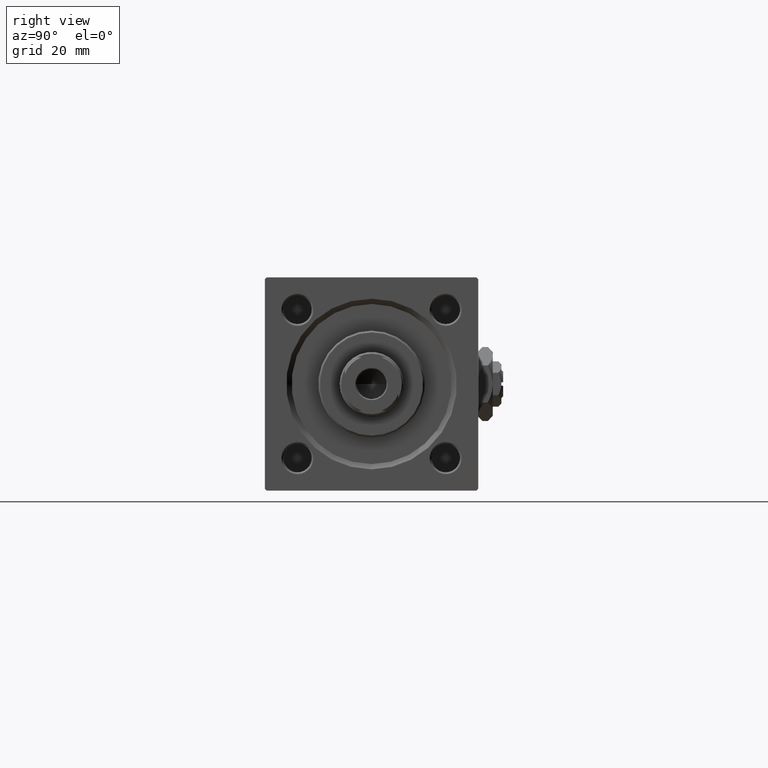
[diagram: clean part render]
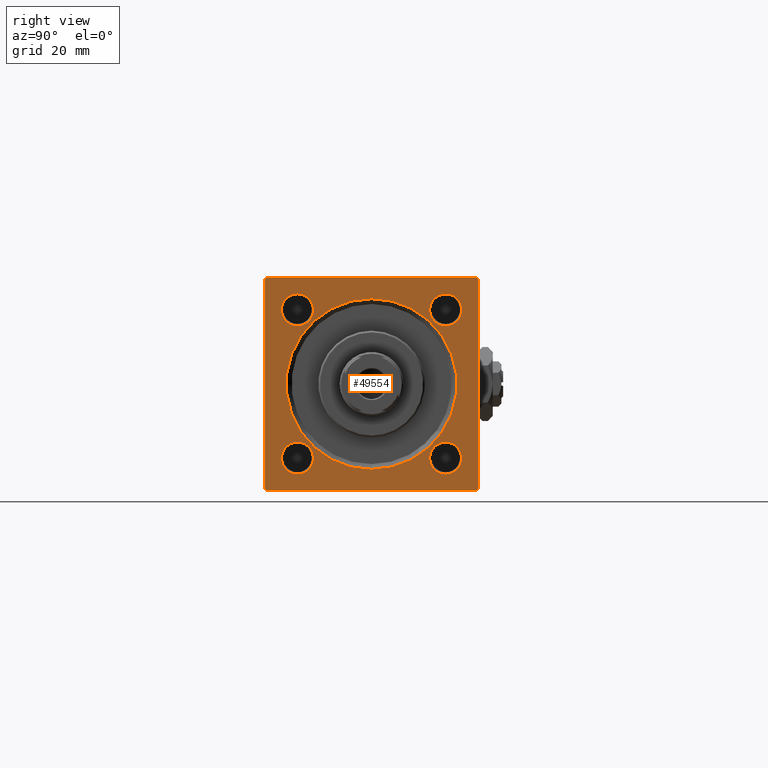
[diagram: same view with one face highlighted and labeled with its STEP entity id]
A machine part, right view. The second image highlights one B-rep face of the part: STEP entity #49554.
In plain terms, the highlighted planar face has unit normal (-1, 0, 0).
Its self-contained STEP definition (entity closure, byte-faithful):
#145 = CIRCLE ( 'NONE', #22981, 4.500000000000017764 ) ;
#213 = CARTESIAN_POINT ( 'NONE',  ( 148.0000000000000000, 30.00000000000000000, 29.50000000000000000 ) ) ;
#396 = ORIENTED_EDGE ( 'NONE', *, *, #10857, .T. ) ;
#662 = AXIS2_PLACEMENT_3D ( 'NONE', #15594, #3428, #19811 ) ;
#929 = ORIENTED_EDGE ( 'NONE', *, *, #51135, .T. ) ;
#1285 = AXIS2_PLACEMENT_3D ( 'NONE', #32407, #27679, #4395 ) ;
#1403 = VECTOR ( 'NONE', #11722, 1000.000000000000114 ) ;
#1463 = DIRECTION ( 'NONE',  ( 0.000000000000000000, -0.7071067811865474617, 0.7071067811865474617 ) ) ;
#1623 = DIRECTION ( 'NONE',  ( 0.000000000000000000, 0.000000000000000000, 1.000000000000000000 ) ) ;
#2126 = CIRCLE ( 'NONE', #1285, 4.500000000000017764 ) ;
#2763 = ORIENTED_EDGE ( 'NONE', *, *, #15296, .T. ) ;
#3004 = LINE ( 'NONE', #39468, #1403 ) ;
#3039 = CARTESIAN_POINT ( 'NONE',  ( 148.0000000000000000, -20.85000000000000142, -25.35000000000001918 ) ) ;
#3245 = FACE_OUTER_BOUND ( 'NONE', #5820, .T. ) ;
#3428 = DIRECTION ( 'NONE',  ( -1.000000000000000000, 0.000000000000000000, -0.000000000000000000 ) ) ;
#3753 = CARTESIAN_POINT ( 'NONE',  ( 148.0000000000000000, 0.000000000000000000, 0.000000000000000000 ) ) ;
#3816 = ORIENTED_EDGE ( 'NONE', *, *, #27775, .T. ) ;
#4395 = DIRECTION ( 'NONE',  ( 0.000000000000000000, 0.000000000000000000, 1.000000000000000000 ) ) ;
#5437 = CARTESIAN_POINT ( 'NONE',  ( 148.0000000000000000, 29.50000000000000000, 30.00000000000000000 ) ) ;
#5590 = AXIS2_PLACEMENT_3D ( 'NONE', #5600, #34133, #1623 ) ;
#5600 = CARTESIAN_POINT ( 'NONE',  ( 148.0000000000000000, 20.84999999999999787, 20.85000000000000142 ) ) ;
#5637 = VECTOR ( 'NONE', #25885, 1000.000000000000000 ) ;
#5820 = EDGE_LOOP ( 'NONE', ( #396, #35622, #26323, #3816, #51748, #929, #29946, #13923 ) ) ;
#6004 = CARTESIAN_POINT ( 'NONE',  ( 148.0000000000000000, -29.50000000000000000, 29.99999999999999289 ) ) ;
#6414 = CARTESIAN_POINT ( 'NONE',  ( 148.0000000000000000, 20.84999999999999787, -20.85000000000000142 ) ) ;
#6750 = CARTESIAN_POINT ( 'NONE',  ( 148.0000000000000000, 0.000000000000000000, 0.000000000000000000 ) ) ;
#7537 = CARTESIAN_POINT ( 'NONE',  ( 148.0000000000000000, 0.000000000000000000, -24.00000000000003908 ) ) ;
#7757 = DIRECTION ( 'NONE',  ( 0.000000000000000000, 0.000000000000000000, 1.000000000000000000 ) ) ;
#7831 = CARTESIAN_POINT ( 'NONE',  ( 148.0000000000000000, 29.50000000000000000, -29.99999999999999289 ) ) ;
#8252 = EDGE_CURVE ( 'NONE', #11124, #14353, #27624, .T. ) ;
#9292 = EDGE_CURVE ( 'NONE', #14353, #11124, #45372, .T. ) ;
#9766 = CARTESIAN_POINT ( 'NONE',  ( 148.0000000000000000, -30.00000000000000000, 29.99999999999999289 ) ) ;
#10134 = CARTESIAN_POINT ( 'NONE',  ( 148.0000000000000000, 30.00000000000000000, -29.99999999999999289 ) ) ;
#10738 = AXIS2_PLACEMENT_3D ( 'NONE', #16005, #36347, #16267 ) ;
#10847 = DIRECTION ( 'NONE',  ( 0.000000000000000000, -1.000000000000000000, -1.156482317317871478E-16 ) ) ;
#10857 = EDGE_CURVE ( 'NONE', #47441, #32833, #45959, .T. ) ;
#11124 = VERTEX_POINT ( 'NONE', #7537 ) ;
#11177 = DIRECTION ( 'NONE',  ( -0.000000000000000000, 0.000000000000000000, 1.000000000000000000 ) ) ;
#11465 = AXIS2_PLACEMENT_3D ( 'NONE', #6750, #46142, #30032 ) ;
#11722 = DIRECTION ( 'NONE',  ( 0.000000000000000000, 0.7071067811865474617, -0.7071067811865474617 ) ) ;
#11907 = ORIENTED_EDGE ( 'NONE', *, *, #9292, .T. ) ;
#12699 = CIRCLE ( 'NONE', #27089, 4.500000000000017764 ) ;
#13351 = CARTESIAN_POINT ( 'NONE',  ( 148.0000000000000000, 20.84999999999999787, -20.85000000000000142 ) ) ;
#13923 = ORIENTED_EDGE ( 'NONE', *, *, #38705, .T. ) ;
#14029 = AXIS2_PLACEMENT_3D ( 'NONE', #45568, #21526, #37628 ) ;
#14295 = EDGE_LOOP ( 'NONE', ( #27257, #11907 ) ) ;
#14353 = VERTEX_POINT ( 'NONE', #41444 ) ;
#15272 = VECTOR ( 'NONE', #10847, 1000.000000000000000 ) ;
#15296 = EDGE_CURVE ( 'NONE', #17389, #32064, #12699, .T. ) ;
#15352 = ORIENTED_EDGE ( 'NONE', *, *, #34759, .T. ) ;
#15594 = CARTESIAN_POINT ( 'NONE',  ( 148.0000000000000000, -20.84999999999999432, 20.85000000000000142 ) ) ;
#15664 = PLANE ( 'NONE',  #45473 ) ;
#15764 = DIRECTION ( 'NONE',  ( -0.000000000000000000, -0.7071067811865474617, -0.7071067811865474617 ) ) ;
#16005 = CARTESIAN_POINT ( 'NONE',  ( 148.0000000000000000, 0.000000000000000000, 0.000000000000000000 ) ) ;
#16047 = CARTESIAN_POINT ( 'NONE',  ( 148.0000000000000000, 30.00000000000000000, -29.49999999999997868 ) ) ;
#16267 = DIRECTION ( 'NONE',  ( 0.000000000000000000, 0.000000000000000000, 1.000000000000000000 ) ) ;
#17163 = EDGE_CURVE ( 'NONE', #30063, #23548, #43316, .T. ) ;
#17379 = VERTEX_POINT ( 'NONE', #30545 ) ;
#17389 = VERTEX_POINT ( 'NONE', #46912 ) ;
#17391 = VERTEX_POINT ( 'NONE', #34504 ) ;
#17822 = CARTESIAN_POINT ( 'NONE',  ( 148.0000000000000000, 20.84999999999999787, 25.35000000000001918 ) ) ;
#18262 = CARTESIAN_POINT ( 'NONE',  ( 148.0000000000000000, -20.84999999999999432, 16.34999999999998366 ) ) ;
#19811 = DIRECTION ( 'NONE',  ( 0.000000000000000000, 0.000000000000000000, 1.000000000000000000 ) ) ;
#20237 = DIRECTION ( 'NONE',  ( -0.000000000000000000, 0.7071067811865474617, 0.7071067811865474617 ) ) ;
#20511 = LINE ( 'NONE', #20780, #32678 ) ;
#20780 = CARTESIAN_POINT ( 'NONE',  ( 148.0000000000000000, -30.00000000000000000, 29.49999999999999289 ) ) ;
#21526 = DIRECTION ( 'NONE',  ( -1.000000000000000000, 0.000000000000000000, -0.000000000000000000 ) ) ;
#22446 = CIRCLE ( 'NONE', #14029, 4.500000000000017764 ) ;
#22543 = EDGE_CURVE ( 'NONE', #27695, #17391, #145, .T. ) ;
#22981 = AXIS2_PLACEMENT_3D ( 'NONE', #13351, #24172, #24694 ) ;
#23091 = FACE_BOUND ( 'NONE', #33343, .T. ) ;
#23548 = VERTEX_POINT ( 'NONE', #6004 ) ;
#24111 = DIRECTION ( 'NONE',  ( -1.000000000000000000, 0.000000000000000000, -0.000000000000000000 ) ) ;
#24172 = DIRECTION ( 'NONE',  ( -1.000000000000000000, 0.000000000000000000, -0.000000000000000000 ) ) ;
#24186 = AXIS2_PLACEMENT_3D ( 'NONE', #35261, #43699, #7757 ) ;
#24694 = DIRECTION ( 'NONE',  ( 0.000000000000000000, 0.000000000000000000, 1.000000000000000000 ) ) ;
#25730 = LINE ( 'NONE', #10134, #48710 ) ;
#25885 = DIRECTION ( 'NONE',  ( 0.000000000000000000, 0.000000000000000000, -1.000000000000000000 ) ) ;
#25998 = DIRECTION ( 'NONE',  ( 0.000000000000000000, -1.000000000000000000, -1.156482317317871478E-16 ) ) ;
#26323 = ORIENTED_EDGE ( 'NONE', *, *, #38810, .F. ) ;
#26841 = ORIENTED_EDGE ( 'NONE', *, *, #37631, .T. ) ;
#27089 = AXIS2_PLACEMENT_3D ( 'NONE', #51887, #28117, #40258 ) ;
#27214 = CARTESIAN_POINT ( 'NONE',  ( 148.0000000000000000, 30.00000000000000000, 30.00000000000000000 ) ) ;
#27257 = ORIENTED_EDGE ( 'NONE', *, *, #8252, .T. ) ;
#27307 = ORIENTED_EDGE ( 'NONE', *, *, #34403, .T. ) ;
#27334 = VERTEX_POINT ( 'NONE', #18262 ) ;
#27624 = CIRCLE ( 'NONE', #10738, 24.00000000000003908 ) ;
#27679 = DIRECTION ( 'NONE',  ( -1.000000000000000000, 0.000000000000000000, -0.000000000000000000 ) ) ;
#27695 = VERTEX_POINT ( 'NONE', #38775 ) ;
#27775 = EDGE_CURVE ( 'NONE', #33625, #41157, #48000, .T. ) ;
#28117 = DIRECTION ( 'NONE',  ( -1.000000000000000000, 0.000000000000000000, -0.000000000000000000 ) ) ;
#28198 = VECTOR ( 'NONE', #20237, 1000.000000000000114 ) ;
#29184 = EDGE_CURVE ( 'NONE', #17391, #27695, #49329, .T. ) ;
#29723 = CARTESIAN_POINT ( 'NONE',  ( 148.0000000000000000, -29.50000000000000000, -30.00000000000000000 ) ) ;
#29946 = ORIENTED_EDGE ( 'NONE', *, *, #17163, .T. ) ;
#30032 = DIRECTION ( 'NONE',  ( 0.000000000000000000, 0.000000000000000000, 1.000000000000000000 ) ) ;
#30063 = VERTEX_POINT ( 'NONE', #30746 ) ;
#30178 = LINE ( 'NONE', #46549, #30891 ) ;
#30438 = DIRECTION ( 'NONE',  ( 0.000000000000000000, 0.000000000000000000, -1.000000000000000000 ) ) ;
#30545 = CARTESIAN_POINT ( 'NONE',  ( 148.0000000000000000, -20.84999999999999432, 25.35000000000001918 ) ) ;
#30746 = CARTESIAN_POINT ( 'NONE',  ( 148.0000000000000000, 29.50000000000000000, 30.00000000000000000 ) ) ;
#30891 = VECTOR ( 'NONE', #30438, 1000.000000000000000 ) ;
#31103 = ORIENTED_EDGE ( 'NONE', *, *, #48646, .T. ) ;
#31247 = DIRECTION ( 'NONE',  ( -1.000000000000000000, 0.000000000000000000, -0.000000000000000000 ) ) ;
#31995 = VERTEX_POINT ( 'NONE', #49336 ) ;
#32064 = VERTEX_POINT ( 'NONE', #3039 ) ;
#32381 = CARTESIAN_POINT ( 'NONE',  ( 148.0000000000000000, 30.00000000000000000, -29.49999999999999289 ) ) ;
#32407 = CARTESIAN_POINT ( 'NONE',  ( 148.0000000000000000, 20.84999999999999787, 20.85000000000000142 ) ) ;
#32678 = VECTOR ( 'NONE', #15764, 1000.000000000000114 ) ;
#32833 = VERTEX_POINT ( 'NONE', #48037 ) ;
#33215 = VERTEX_POINT ( 'NONE', #213 ) ;
#33343 = EDGE_LOOP ( 'NONE', ( #15352, #2763 ) ) ;
#33625 = VERTEX_POINT ( 'NONE', #7831 ) ;
#33882 = EDGE_LOOP ( 'NONE', ( #39400, #33917 ) ) ;
#33917 = ORIENTED_EDGE ( 'NONE', *, *, #29184, .T. ) ;
#34133 = DIRECTION ( 'NONE',  ( -1.000000000000000000, 0.000000000000000000, -0.000000000000000000 ) ) ;
#34403 = EDGE_CURVE ( 'NONE', #31995, #40770, #2126, .T. ) ;
#34504 = CARTESIAN_POINT ( 'NONE',  ( 148.0000000000000000, 20.84999999999999787, -16.34999999999998366 ) ) ;
#34759 = EDGE_CURVE ( 'NONE', #32064, #17389, #22446, .T. ) ;
#35219 = EDGE_CURVE ( 'NONE', #33215, #41157, #30178, .T. ) ;
#35261 = CARTESIAN_POINT ( 'NONE',  ( 148.0000000000000000, -20.84999999999999432, 20.85000000000000142 ) ) ;
#35265 = CIRCLE ( 'NONE', #662, 4.500000000000017764 ) ;
#35622 = ORIENTED_EDGE ( 'NONE', *, *, #36811, .T. ) ;
#36347 = DIRECTION ( 'NONE',  ( -1.000000000000000000, 0.000000000000000000, -0.000000000000000000 ) ) ;
#36811 = EDGE_CURVE ( 'NONE', #32833, #49476, #3004, .T. ) ;
#37292 = CARTESIAN_POINT ( 'NONE',  ( 148.0000000000000000, -30.00000000000000000, 29.49999999999999289 ) ) ;
#37628 = DIRECTION ( 'NONE',  ( 0.000000000000000000, 0.000000000000000000, 1.000000000000000000 ) ) ;
#37631 = EDGE_CURVE ( 'NONE', #27334, #17379, #46990, .T. ) ;
#38705 = EDGE_CURVE ( 'NONE', #23548, #47441, #20511, .T. ) ;
#38775 = CARTESIAN_POINT ( 'NONE',  ( 148.0000000000000000, 20.84999999999999787, -25.35000000000001918 ) ) ;
#38810 = EDGE_CURVE ( 'NONE', #33625, #49476, #25730, .T. ) ;
#39163 = DIRECTION ( 'NONE',  ( 0.000000000000000000, 0.000000000000000000, 1.000000000000000000 ) ) ;
#39203 = AXIS2_PLACEMENT_3D ( 'NONE', #6414, #31247, #39163 ) ;
#39400 = ORIENTED_EDGE ( 'NONE', *, *, #22543, .T. ) ;
#39468 = CARTESIAN_POINT ( 'NONE',  ( 148.0000000000000000, -29.50000000000000000, -30.00000000000000000 ) ) ;
#39728 = EDGE_LOOP ( 'NONE', ( #27307, #41093 ) ) ;
#40258 = DIRECTION ( 'NONE',  ( 0.000000000000000000, 0.000000000000000000, 1.000000000000000000 ) ) ;
#40770 = VERTEX_POINT ( 'NONE', #17822 ) ;
#41093 = ORIENTED_EDGE ( 'NONE', *, *, #43803, .T. ) ;
#41157 = VERTEX_POINT ( 'NONE', #16047 ) ;
#41444 = CARTESIAN_POINT ( 'NONE',  ( 148.0000000000000000, 2.939152317953652628E-15, 24.00000000000003908 ) ) ;
#41867 = CIRCLE ( 'NONE', #5590, 4.500000000000017764 ) ;
#42099 = VECTOR ( 'NONE', #1463, 1000.000000000000114 ) ;
#42748 = EDGE_LOOP ( 'NONE', ( #26841, #31103 ) ) ;
#43316 = LINE ( 'NONE', #27214, #15272 ) ;
#43699 = DIRECTION ( 'NONE',  ( -1.000000000000000000, 0.000000000000000000, -0.000000000000000000 ) ) ;
#43803 = EDGE_CURVE ( 'NONE', #40770, #31995, #41867, .T. ) ;
#45372 = CIRCLE ( 'NONE', #11465, 24.00000000000003908 ) ;
#45473 = AXIS2_PLACEMENT_3D ( 'NONE', #3753, #24111, #11177 ) ;
#45568 = CARTESIAN_POINT ( 'NONE',  ( 148.0000000000000000, -20.85000000000000142, -20.85000000000000142 ) ) ;
#45959 = LINE ( 'NONE', #9766, #5637 ) ;
#46142 = DIRECTION ( 'NONE',  ( -1.000000000000000000, 0.000000000000000000, -0.000000000000000000 ) ) ;
#46549 = CARTESIAN_POINT ( 'NONE',  ( 148.0000000000000000, 30.00000000000000000, 30.00000000000000000 ) ) ;
#46912 = CARTESIAN_POINT ( 'NONE',  ( 148.0000000000000000, -20.85000000000000142, -16.34999999999998366 ) ) ;
#46990 = CIRCLE ( 'NONE', #24186, 4.500000000000017764 ) ;
#47384 = FACE_BOUND ( 'NONE', #33882, .T. ) ;
#47441 = VERTEX_POINT ( 'NONE', #37292 ) ;
#47645 = FACE_BOUND ( 'NONE', #39728, .T. ) ;
#48000 = LINE ( 'NONE', #32381, #28198 ) ;
#48037 = CARTESIAN_POINT ( 'NONE',  ( 148.0000000000000000, -30.00000000000000000, -29.49999999999998579 ) ) ;
#48646 = EDGE_CURVE ( 'NONE', #17379, #27334, #35265, .T. ) ;
#48710 = VECTOR ( 'NONE', #25998, 1000.000000000000000 ) ;
#49329 = CIRCLE ( 'NONE', #39203, 4.500000000000017764 ) ;
#49336 = CARTESIAN_POINT ( 'NONE',  ( 148.0000000000000000, 20.84999999999999787, 16.34999999999998366 ) ) ;
#49476 = VERTEX_POINT ( 'NONE', #29723 ) ;
#49554 = ADVANCED_FACE ( 'NONE', ( #47645, #51605, #23091, #47384, #51361, #3245 ), #15664, .F. ) ;
#50361 = LINE ( 'NONE', #5437, #42099 ) ;
#51135 = EDGE_CURVE ( 'NONE', #33215, #30063, #50361, .T. ) ;
#51361 = FACE_BOUND ( 'NONE', #14295, .T. ) ;
#51605 = FACE_BOUND ( 'NONE', #42748, .T. ) ;
#51748 = ORIENTED_EDGE ( 'NONE', *, *, #35219, .F. ) ;
#51887 = CARTESIAN_POINT ( 'NONE',  ( 148.0000000000000000, -20.85000000000000142, -20.85000000000000142 ) ) ;